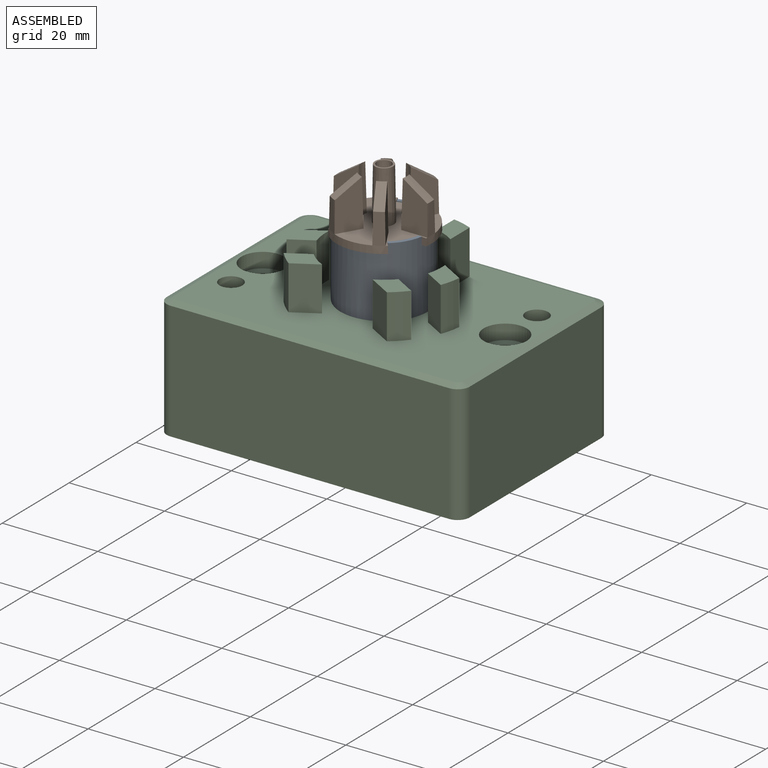
[diagram: assembled view]
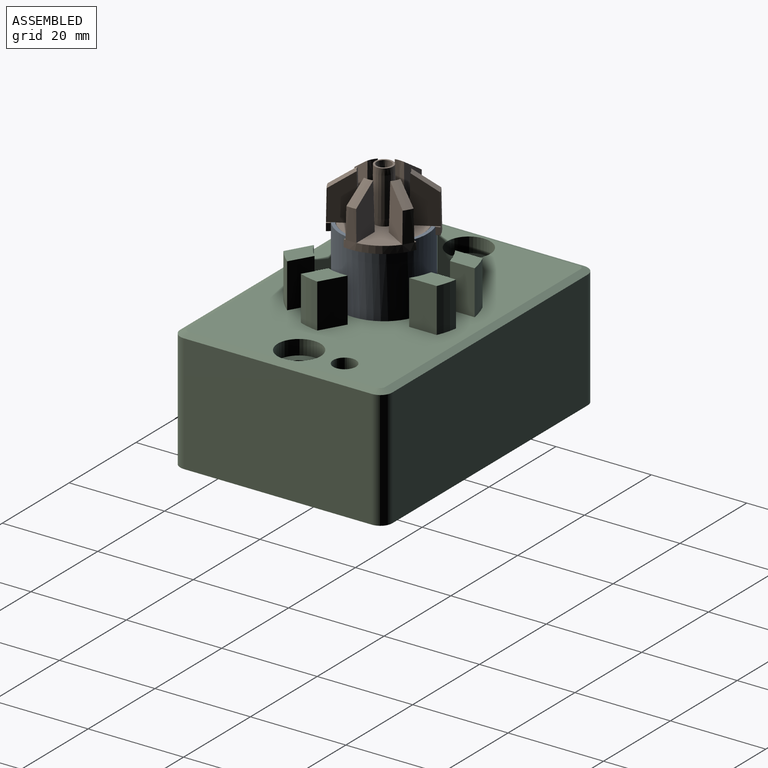
[diagram: assembled view, second angle]
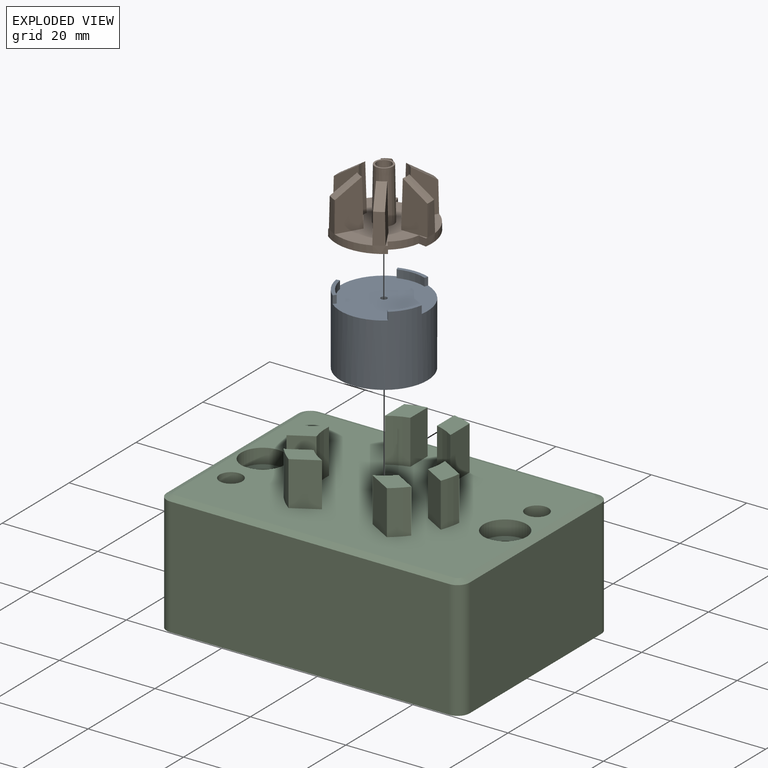
[diagram: exploded view]
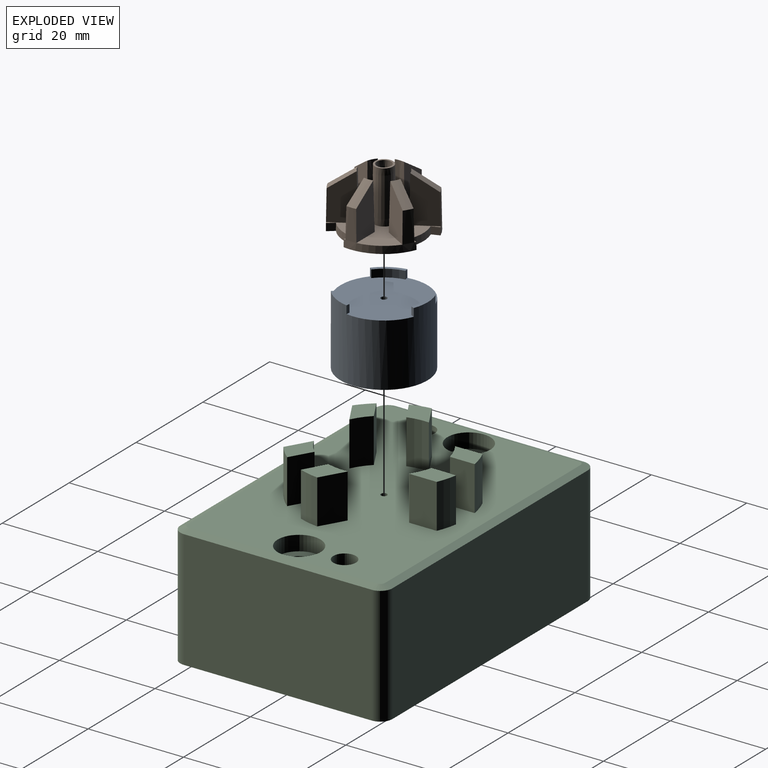
[diagram: exploded view, second angle]
ASSEMBLY  parts=3 mates=2
PART A: 16 faces, bbox 18.3x18.3x14.8 mm
  f0: cylinder r=8.41mm len=5.09mm, axis (0,0,1), area 10mm2, adj f6,f7,f8,f13
  f1: cylinder r=8.41mm len=5.14mm, axis (0,0,1), area 10mm2, adj f3,f4,f5,f13
  f2: cylinder r=8.41mm len=5.91mm, axis (0,0,1), area 10mm2, adj f9,f10,f11,f13
  f3: plane 1.65x0.73mm, normal (-0.16,0.99,0), area 1.2mm2, adj f1,f4,f13,f14
  f4: plane 5.71x3.64mm, normal (0,0,1), area 4.6mm2, adj f1,f3,f5,f14
  f5: plane 1.65x0.57mm, normal (0.78,-0.63,0), area 1.2mm2, adj f1,f4,f13,f14
  f6: plane 1.65x0.57mm, normal (-0.78,-0.63,0), area 1.2mm2, adj f0,f7,f13,f14
  f7: plane 5.67x3.72mm, normal (0,0,1), area 4.6mm2, adj f0,f6,f8,f14
  f8: plane 1.65x0.73mm, normal (0.16,0.99,0), area 1.2mm2, adj f0,f7,f13,f14
  f9: plane 1.65x0.69mm, normal (0.93,-0.36,0), area 1.2mm2, adj f2,f10,f13,f14
  f10: plane 6.44x1.3mm, normal (0,0,1), area 4.6mm2, adj f2,f9,f11,f14
  f11: plane 1.65x0.69mm, normal (-0.93,-0.36,0), area 1.2mm2, adj f2,f10,f13,f14
  f12: cylinder r=0.64mm len=13.13mm, axis (0,0,1), area 52.4mm2, adj f13,f15
  f13: plane 18.29x17.73mm, normal (0,0,1), area 247.5mm2, adj f0,f1,f2,f3,f5,f6,f8,f9
  f14: cylinder r=9.14mm len=18.29mm, axis (0,0,-1), area 787mm2, adj f3,f4,f5,f6,f7,f8,f9,f10
  f15: plane 18.29x18.29mm, normal (0,0,-1), area 261.4mm2, adj f12,f14
PART B: 43 faces, bbox 20x20.3x12.7 mm
  f0: plane 2.67x2.67mm, normal (0,0,1), area 2.2mm2, adj f17,f40
  f1: cone r=9.97mm half-angle=1deg, axis (0,0,-1), area 48.5mm2, adj f3,f4,f5,f6,f16,f18,f19,f29
  f2: cone r=4.55mm half-angle=1deg, axis (0,0,1), area 20.9mm2, adj f3,f4,f5,f6
  f3: plane 10.04x5.7mm, normal (0.99,0.16,0.02), area 43.3mm2, adj f1,f2,f5,f6
  f4: plane 10.04x5.7mm, normal (-0.99,-0.16,0.02), area 43.3mm2, adj f1,f2,f5,f6
  f5: cone r=9.86mm half-angle=56.5deg, axis (0,0,-1), area 13.5mm2, adj f1,f2,f3,f4
  f6: plane 19.94x19.71mm, normal (0,0,1), area 189mm2, adj f1,f2,f3,f4,f7,f8,f9,f10
  f7: cone r=8.28mm half-angle=1deg, axis (0,0,-1), area 9.3mm2, adj f6,f8,f18,f19
  f8: plane 1.52x1.52mm, normal (-0.5,0.87,0.02), area 2.6mm2, adj f6,f7,f9,f19
  f9: cone r=9.99mm half-angle=1deg, axis (0,0,-1), area 48.5mm2, adj f6,f8,f10,f19,f25,f26,f27,f37
  f10: plane 1.65x1.52mm, normal (0.95,0.31,0.02), area 2.6mm2, adj f6,f9,f11,f19
  f11: cone r=8.28mm half-angle=1deg, axis (0,0,-1), area 9.3mm2, adj f6,f10,f12,f19
  f12: plane 1.52x1.49mm, normal (-0.5,-0.87,0.02), area 2.6mm2, adj f6,f11,f13,f19
  f13: cone r=9.99mm half-angle=1deg, axis (0,0,-1), area 48.5mm2, adj f6,f12,f14,f19,f21,f22,f23,f33
  f14: plane 1.52x1.31mm, normal (-0.74,0.67,0.02), area 2.6mm2, adj f6,f13,f15,f19
  f15: cone r=8.28mm half-angle=1deg, axis (0,0,-1), area 9.3mm2, adj f6,f14,f16,f19
  f16: plane 1.74x1.52mm, normal (1,0,0.02), area 2.6mm2, adj f1,f6,f15,f19
  f17: cone r=1.02mm half-angle=1deg, axis (0,0,1), area 9.9mm2, adj f0,f19
  f18: plane 1.71x1.52mm, normal (-0.21,-0.98,0.02), area 2.6mm2, adj f1,f6,f7,f19
  f19: plane 19.99x19.77mm, normal (0,0,-1), area 276.1mm2, adj f1,f7,f8,f9,f10,f11,f12,f13
  f20: cone r=4.55mm half-angle=1deg, axis (0,0,1), area 20.9mm2, adj f6,f21,f22,f23
  f21: plane 10.04x4.54mm, normal (0.63,-0.78,0.02), area 43.3mm2, adj f6,f13,f20,f23
  f22: plane 10.04x4.54mm, normal (-0.63,0.78,0.02), area 43.3mm2, adj f6,f13,f20,f23
  f23: cone r=9.86mm half-angle=56.5deg, axis (0,0,-1), area 13.5mm2, adj f13,f20,f21,f22
  f24: cone r=4.55mm half-angle=1deg, axis (0,0,1), area 20.9mm2, adj f6,f25,f26,f27
  f25: plane 10.04x5.7mm, normal (-0.99,-0.16,0.02), area 43.3mm2, adj f6,f9,f24,f27
  f26: plane 10.04x5.7mm, normal (0.99,0.16,0.02), area 43.3mm2, adj f6,f9,f24,f27
  f27: cone r=9.86mm half-angle=56.5deg, axis (0,0,-1), area 13.5mm2, adj f9,f24,f25,f26
  f28: cone r=4.55mm half-angle=1deg, axis (0,0,1), area 20.9mm2, adj f6,f29,f30,f31
  f29: plane 10.04x5.4mm, normal (0.36,0.93,0.02), area 43.3mm2, adj f1,f6,f28,f31
  f30: plane 10.04x5.4mm, normal (-0.36,-0.93,0.02), area 43.3mm2, adj f1,f6,f28,f31
  f31: cone r=9.86mm half-angle=56.5deg, axis (0,0,-1), area 13.5mm2, adj f1,f28,f29,f30
  f32: cone r=4.55mm half-angle=1deg, axis (0,0,1), area 20.9mm2, adj f6,f33,f34,f35
  f33: plane 10.04x5.4mm, normal (-0.36,-0.93,0.02), area 43.3mm2, adj f6,f13,f32,f35
  f34: plane 10.04x5.4mm, normal (0.36,0.93,0.02), area 43.3mm2, adj f6,f13,f32,f35
  f35: cone r=9.86mm half-angle=56.5deg, axis (0,0,-1), area 13.5mm2, adj f13,f32,f33,f34
  f36: cone r=4.55mm half-angle=1deg, axis (0,0,1), area 20.9mm2, adj f6,f37,f38,f39
  f37: plane 10.04x4.54mm, normal (-0.63,0.78,0.02), area 43.3mm2, adj f6,f9,f36,f39
  f38: plane 10.04x4.54mm, normal (0.63,-0.78,0.02), area 43.3mm2, adj f6,f9,f36,f39
  f39: cone r=9.86mm half-angle=56.5deg, axis (0,0,-1), area 13.5mm2, adj f9,f36,f37,f38
  f40: cone r=1.33mm half-angle=1deg, axis (0,0,1), area 98.1mm2, adj f0,f42
  f41: cone r=2.1mm half-angle=1deg, axis (0,0,-1), area 137.3mm2, adj f6,f42
  f42: plane 3.81x3.81mm, normal (0,0,1), area 4.1mm2, adj f40,f41
PART C: 57 faces, bbox 63.5x44.5x34.7 mm
  f0: cylinder r=0.64mm len=25.4mm, axis (0,0,1), area 101.3mm2, adj f11,f12
  f1: plane 39.37x24.77mm, normal (-1,0,0), area 975mm2, adj f2,f10,f11,f22
  f2: cylinder r=2.54mm len=24.77mm, axis (0,0,1), area 98.8mm2, adj f1,f3,f11,f20
  f3: plane 58.42x24.77mm, normal (0,1,0), area 1446.8mm2, adj f2,f4,f11,f18
  f4: cylinder r=2.54mm len=24.77mm, axis (0,0,1), area 98.8mm2, adj f3,f5,f11,f17
  f5: plane 39.37x24.77mm, normal (1,0,0), area 975mm2, adj f4,f6,f11,f19
  f6: cylinder r=2.54mm len=24.77mm, axis (0,0,1), area 98.8mm2, adj f5,f7,f11,f21
  f7: plane 58.42x24.77mm, normal (0,-1,0), area 1446.8mm2, adj f6,f10,f11,f23
  f8: cylinder r=2.55mm len=22.28mm, axis (0,0,1), area 357.3mm2, adj f11,f15
  f9: cylinder r=2.55mm len=22.28mm, axis (0,0,1), area 357.3mm2, adj f11,f13
  f10: cylinder r=2.54mm len=24.77mm, axis (0,0,1), area 98.8mm2, adj f1,f7,f11,f24
  f11: plane 63.5x44.45mm, normal (0,0,-1), area 2739.2mm2, adj f0,f1,f2,f3,f4,f5,f6,f7
  f12: plane 60.51x41.46mm, normal (0,0,1), area 2211.6mm2, adj f0,f14,f16,f17,f18,f19,f20,f21
  f13: plane 8.99x8.99mm, normal (0,0,1), area 43mm2, adj f9,f14
  f14: cylinder r=4.5mm len=8.99mm, axis (0,0,1), area 88.3mm2, adj f12,f13
  f15: plane 8.99x8.99mm, normal (0,0,1), area 43mm2, adj f8,f16
  f16: cylinder r=4.5mm len=8.99mm, axis (0,0,1), area 88.3mm2, adj f12,f15
  f17: cone r=1.04mm half-angle=67deg, axis (0,0,-1), area 4.6mm2, adj f4,f12,f18,f19
  f18: plane 58.42x1.5mm, normal (0,0.39,0.92), area 94.9mm2, adj f3,f12,f17,f20
  f19: plane 39.37x1.5mm, normal (0.39,0,0.92), area 64mm2, adj f5,f12,f17,f21
  f20: cone r=1.04mm half-angle=67deg, axis (0,0,-1), area 4.6mm2, adj f2,f12,f18,f22
  f21: cone r=1.04mm half-angle=67deg, axis (0,0,-1), area 4.6mm2, adj f6,f12,f19,f23
  f22: plane 39.37x1.5mm, normal (-0.39,0,0.92), area 64mm2, adj f1,f12,f20,f24
  f23: plane 58.42x1.5mm, normal (0,-0.39,0.92), area 94.9mm2, adj f7,f12,f21,f24
  f24: cone r=1.04mm half-angle=67deg, axis (0,0,-1), area 4.6mm2, adj f10,f12,f22,f23
  f25: plane 7x5.48mm, normal (0,0,1), area 22mm2, adj f26,f27,f28,f29
  f26: plane 9.27x4.48mm, normal (0.5,-0.87,0), area 48mm2, adj f12,f25,f27,f29
  f27: cylinder r=12.19mm len=9.27mm, axis (0,0,-1), area 41.4mm2, adj f12,f25,f26,f28
  f28: plane 9.27x5mm, normal (-0.5,0.87,0), area 53.5mm2, adj f12,f25,f27,f29
  f29: cylinder r=17.27mm len=9.27mm, axis (0,0,-1), area 39.4mm2, adj f12,f25,f26,f28
  f30: plane 8.06x5.51mm, normal (0,0,1), area 22mm2, adj f31,f32,f33,f34
  f31: cylinder r=12.19mm len=9.27mm, axis (0,0,-1), area 41.4mm2, adj f12,f30,f32,f34
  f32: plane 9.27x4.48mm, normal (0.5,0.87,0), area 48mm2, adj f12,f30,f31,f33
  f33: cylinder r=17.27mm len=9.27mm, axis (0,0,-1), area 39.4mm2, adj f12,f30,f32,f34
  f34: plane 9.27x5mm, normal (-0.5,-0.87,0), area 53.5mm2, adj f12,f30,f31,f33
  f35: plane 6.96x4.06mm, normal (0,0,1), area 22mm2, adj f36,f37,f38,f39
  f36: cylinder r=12.19mm len=9.27mm, axis (0,0,-1), area 41.4mm2, adj f12,f35,f37,f39
  f37: plane 9.27x5.77mm, normal (-1,0,0), area 53.5mm2, adj f12,f35,f36,f38
  f38: cylinder r=17.27mm len=9.27mm, axis (0,0,-1), area 39.4mm2, adj f12,f35,f37,f39
  f39: plane 9.27x5.18mm, normal (1,0,0), area 48mm2, adj f12,f35,f36,f38
  f40: plane 6.96x4.06mm, normal (0,0,1), area 22mm2, adj f41,f42,f43,f44
  f41: cylinder r=12.19mm len=9.27mm, axis (0,0,-1), area 41.4mm2, adj f12,f40,f42,f44
  f42: plane 9.27x5.18mm, normal (-1,0,0), area 48mm2, adj f12,f40,f41,f43
  f43: cylinder r=17.27mm len=9.27mm, axis (0,0,-1), area 39.4mm2, adj f12,f40,f42,f44
  f44: plane 9.27x5.77mm, normal (1,0,0), area 53.5mm2, adj f12,f40,f41,f43
  f45: plane 7x5.48mm, normal (0,0,1), area 22mm2, adj f46,f47,f48,f49
  f46: cylinder r=12.19mm len=9.27mm, axis (0,0,-1), area 41.4mm2, adj f12,f45,f47,f49
  f47: plane 9.27x5mm, normal (0.5,0.87,0), area 53.5mm2, adj f12,f45,f46,f48
  f48: cylinder r=17.27mm len=9.27mm, axis (0,0,-1), area 39.4mm2, adj f12,f45,f47,f49
  f49: plane 9.27x4.48mm, normal (-0.5,-0.87,0), area 48mm2, adj f12,f45,f46,f48
  f50: plane 8.06x5.51mm, normal (0,0,1), area 22mm2, adj f51,f52,f53,f54
  f51: cylinder r=12.19mm len=9.27mm, axis (0,0,-1), area 41.4mm2, adj f12,f50,f52,f54
  f52: plane 9.27x5mm, normal (0.5,-0.87,0), area 53.5mm2, adj f12,f50,f51,f53
  f53: cylinder r=17.27mm len=9.27mm, axis (0,0,-1), area 39.4mm2, adj f12,f50,f52,f54
  f54: plane 9.27x4.48mm, normal (-0.5,0.87,0), area 48mm2, adj f12,f50,f51,f53
  f55: cylinder r=2.38mm len=25.4mm, axis (0,0,1), area 380mm2, adj f11,f12
  f56: cylinder r=2.38mm len=25.4mm, axis (0,0,1), area 380mm2, adj f11,f12
PLACE A at identity fixed
PLACE B rot(axis=(0,0,1),21deg) t=(0,0,13.13)mm
PLACE C at identity
MATE parallel B.f17 <-> A.f12  axis (0,0,-1) through (0,0,13.13)mm
MATE fastened C.f0 <-> A.f14  axis (0,0,1) through (0,0,0)mm
